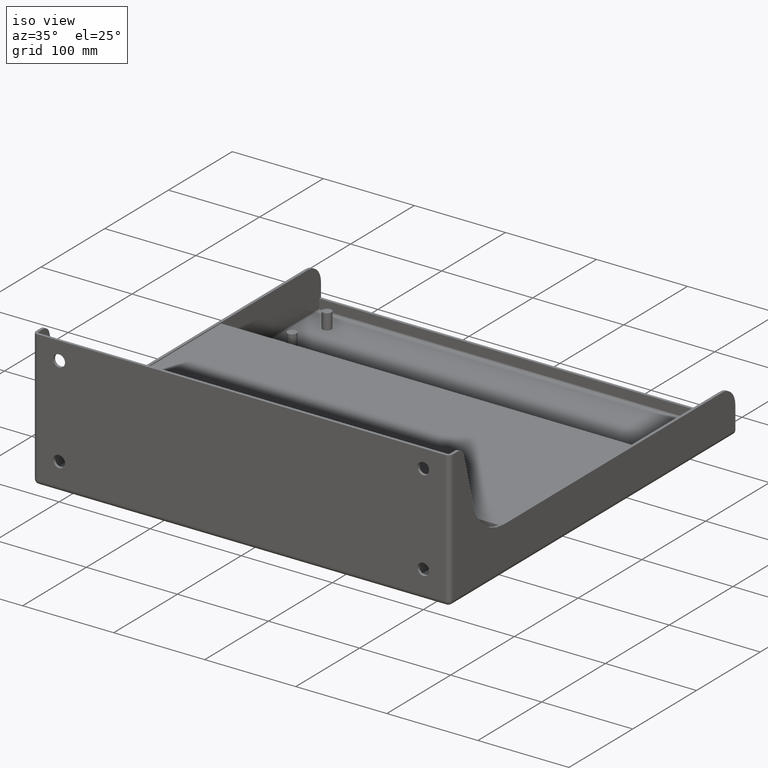
[diagram: clean part render]
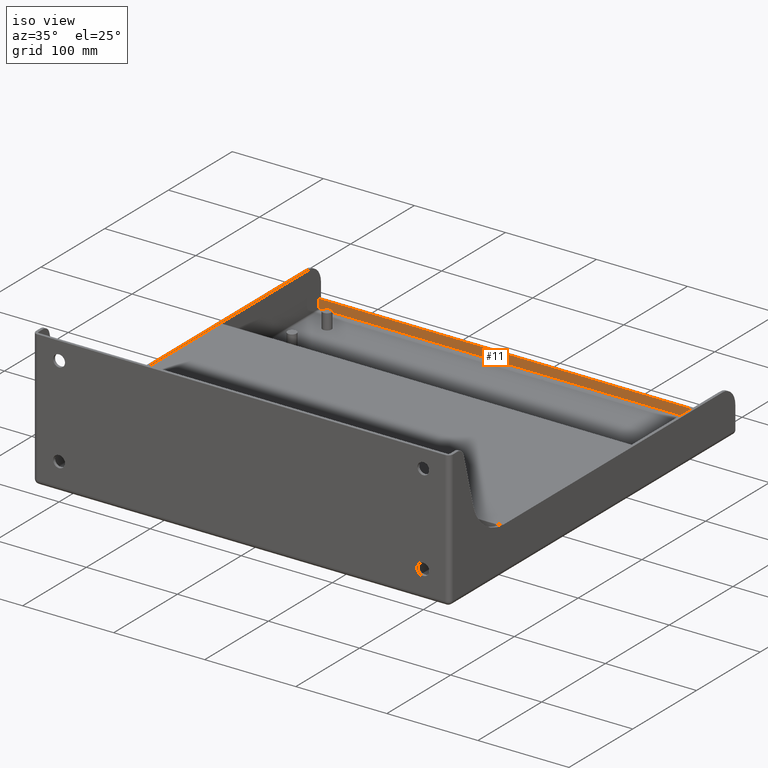
[diagram: same view with one face highlighted and labeled with its STEP entity id]
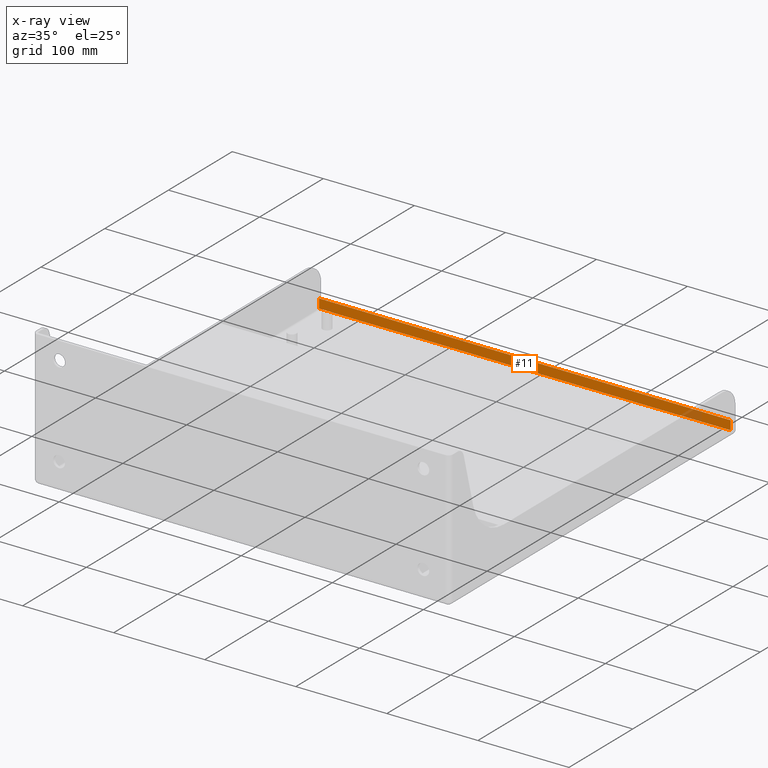
[diagram: x-ray of the same camera — body ghosted, the highlighted face saturated]
A machine part, iso view. The second image highlights one B-rep face of the part: STEP entity #11.
The next image is the same camera in x-ray: the body ghosted, the highlighted face saturated — about 4% of this face is hidden behind the body in this view.
In plain terms, the highlighted planar face has unit normal (0, -1, 0).
Its self-contained STEP definition (entity closure, byte-faithful):
#11 = ADVANCED_FACE ( 'NONE', ( #1694 ), #1795, .T. ) ;
#123 = CARTESIAN_POINT ( 'NONE',  ( -226.0000000000000000, 445.0000000000000000, 5.000000000000000000 ) ) ;
#124 = CARTESIAN_POINT ( 'NONE',  ( -226.0000000000000000, 445.0000000000000000, 15.00000000000000400 ) ) ;
#169 = LINE ( 'NONE', #737, #172 ) ;
#172 = VECTOR ( 'NONE', #738, 1000.000000000000000 ) ;
#200 = LINE ( 'NONE', #338, #203 ) ;
#203 = VECTOR ( 'NONE', #339, 1000.000000000000000 ) ;
#308 = DIRECTION ( 'NONE',  ( 0.0000000000000000000, -0.0000000000000000000, -1.000000000000000000 ) ) ;
#338 = CARTESIAN_POINT ( 'NONE',  ( -226.0000000000000000, 445.0000000000000000, 0.0000000000000000000 ) ) ;
#339 = DIRECTION ( 'NONE',  ( -0.0000000000000000000, 0.0000000000000000000, 1.000000000000000000 ) ) ;
#442 = CARTESIAN_POINT ( 'NONE',  ( 226.0000000000000000, 445.0000000000000000, 5.000000000000000000 ) ) ;
#445 = CARTESIAN_POINT ( 'NONE',  ( 226.0000000000000000, 445.0000000000000000, 15.00000000000000400 ) ) ;
#502 = EDGE_CURVE ( 'NONE', #2147, #1895, #994, .T. ) ;
#503 = EDGE_CURVE ( 'NONE', #2148, #1898, #987, .T. ) ;
#543 = EDGE_CURVE ( 'NONE', #1895, #1898, #169, .T. ) ;
#561 = EDGE_CURVE ( 'NONE', #2147, #2148, #200, .T. ) ;
#578 = AXIS2_PLACEMENT_3D ( 'NONE', #1797, #1798, #308 ) ;
#737 = CARTESIAN_POINT ( 'NONE',  ( 226.0000000000000000, 445.0000000000000000, 0.0000000000000000000 ) ) ;
#738 = DIRECTION ( 'NONE',  ( -0.0000000000000000000, 0.0000000000000000000, 1.000000000000000000 ) ) ;
#987 = LINE ( 'NONE', #1150, #999 ) ;
#994 = LINE ( 'NONE', #1162, #997 ) ;
#997 = VECTOR ( 'NONE', #1164, 1000.000000000000000 ) ;
#999 = VECTOR ( 'NONE', #1165, 1000.000000000000000 ) ;
#1150 = CARTESIAN_POINT ( 'NONE',  ( -226.0000000000000000, 445.0000000000000000, 15.00000000000000400 ) ) ;
#1162 = CARTESIAN_POINT ( 'NONE',  ( 226.0000000000000000, 445.0000000000000000, 4.999999999999999100 ) ) ;
#1164 = DIRECTION ( 'NONE',  ( 1.000000000000000000, -0.0000000000000000000, -0.0000000000000000000 ) ) ;
#1165 = DIRECTION ( 'NONE',  ( 1.000000000000000000, 0.0000000000000000000, 0.0000000000000000000 ) ) ;
#1584 = ORIENTED_EDGE ( 'NONE', *, *, #502, .T. ) ;
#1585 = ORIENTED_EDGE ( 'NONE', *, *, #503, .F. ) ;
#1586 = ORIENTED_EDGE ( 'NONE', *, *, #561, .F. ) ;
#1589 = ORIENTED_EDGE ( 'NONE', *, *, #543, .T. ) ;
#1597 = EDGE_LOOP ( 'NONE', ( #1586, #1584, #1589, #1585 ) ) ;
#1694 = FACE_OUTER_BOUND ( 'NONE', #1597, .T. ) ;
#1795 = PLANE ( 'NONE',  #578 ) ;
#1797 = CARTESIAN_POINT ( 'NONE',  ( 229.0000000000000000, 445.0000000000000000, 0.0000000000000000000 ) ) ;
#1798 = DIRECTION ( 'NONE',  ( 0.0000000000000000000, -1.000000000000000000, 0.0000000000000000000 ) ) ;
#1895 = VERTEX_POINT ( 'NONE', #442 ) ;
#1898 = VERTEX_POINT ( 'NONE', #445 ) ;
#2147 = VERTEX_POINT ( 'NONE', #123 ) ;
#2148 = VERTEX_POINT ( 'NONE', #124 ) ;